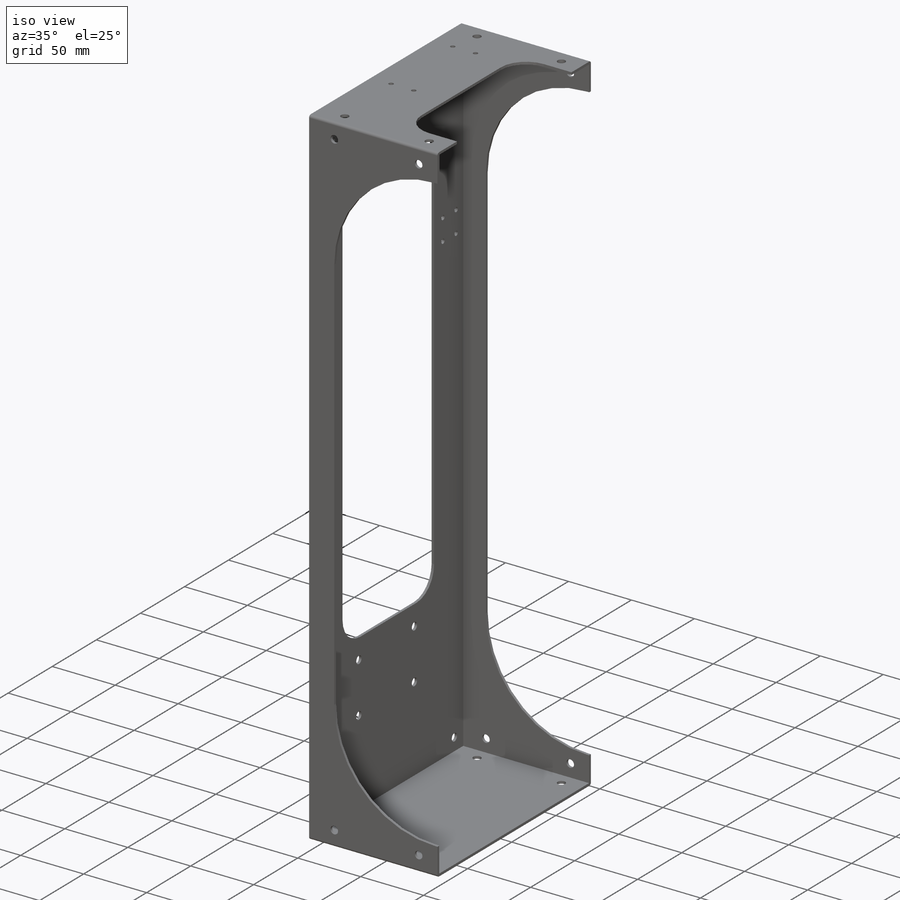
[diagram: iso view]
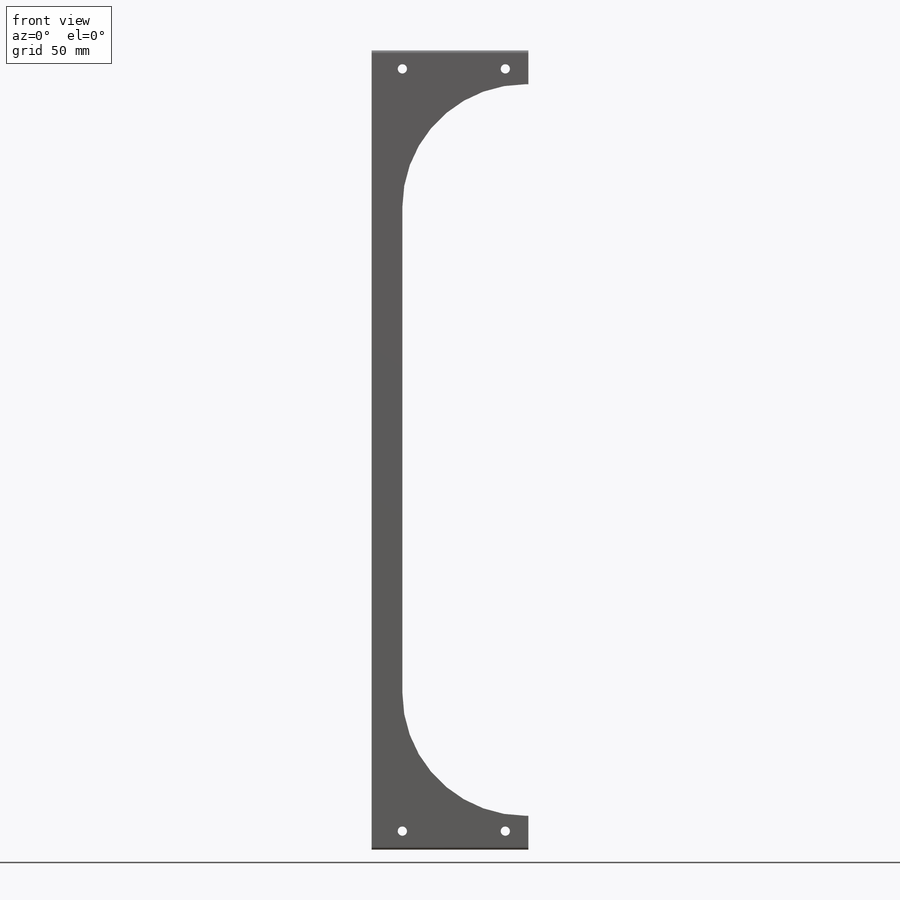
[diagram: front view]
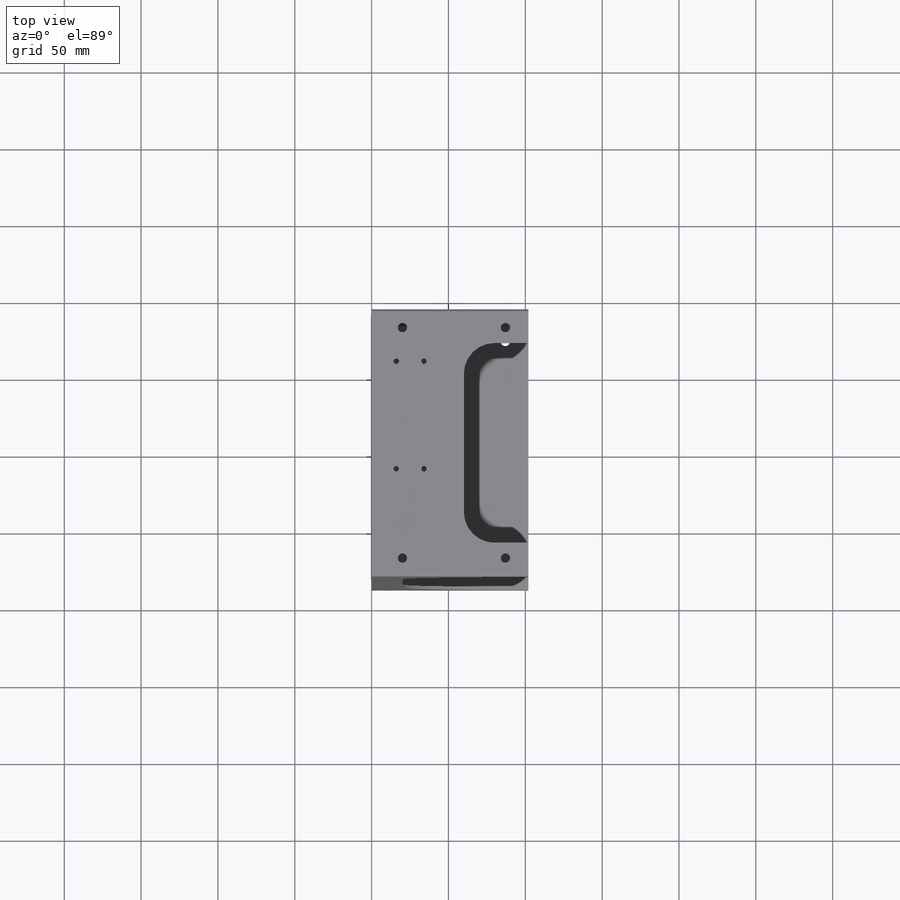
[diagram: top view]
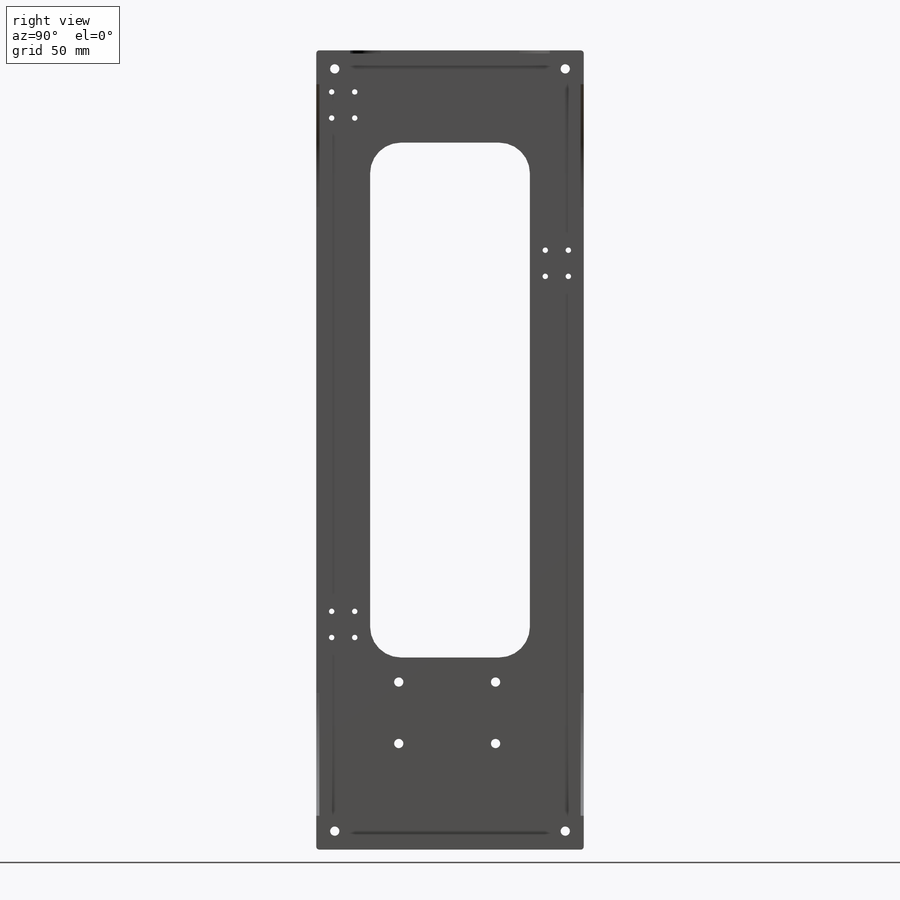
[diagram: right view]
SOLIDWORKS PART (.sldprt)
format: sldprt  version: not decoded by parser v0  size: 473,088 bytes
history: native  units: mm
features: sketch x10, cut_extrude x8, extrude x2, material x1, fillet x1 (+11 scaffold rows collapsed)
feature tree (33):
  scaffold x11  (default folders/planes/origin — collapsed)
  material  "Material <not specified>"
  sketch  "Sketch1"  dims[D1=520.0mm D2=174.0mm]
  extrude  "Boss-Extrude1"  Depth=2mm
  sketch  "Sketch2"  dims[D1=2.0mm D2=0.0mm]
  extrude  "Boss-Extrude2"  Depth=100mm
  sketch  "Sketch3"  dims[c1.D9=4.0mm c1.D10=13.0mm c1.D13=600.0mm c1.D3=80.0mm c1.D1=34.5mm c1.D2=10.4mm c2.D3=80.6mm c2.D4=53.1mm c2.D5=16.65mm c2.D6=2.85mm c2.D7=17.75mm c2.D8=15.1mm c2.D11=22.0mm c2.D12=22.0mm c2.D2=20.0mm]
  cut_extrude  "Cut-Extrude1"  Depth=10mm
  sketch  "Sketch4"  dims[D2=6.0mm D1=12.0mm D3=15.0mm D4=12.0mm D5=20.0mm]
  cut_extrude  "Cut-Extrude2"  [1 undecoded]
  sketch  "Sketch5"  dims[D3=6.0mm D1=12.0mm D2=12.0mm]
  cut_extrude  "Cut-Extrude3"  [1 undecoded]
  sketch  "Sketch7"  dims[c1.D4=150.0mm c1.D5=20.0mm c2.D4=150.0mm c2.D5=80.0mm c2.D1=22.0mm c2.D2=22.0mm c2.D3=20.0mm c3.D4=150.0mm]
  cut_extrude  "Cut-Extrude4"  Depth=10mm
  sketch  "Sketch8"  dims[D1=20.0mm D5=3.5mm D2=22.0mm D3=22.0mm D4=60.0mm]
  cut_extrude  "Cut-Extrude5"  Depth=10mm
  fillet  "Fillet1"  Radius=1.8mm
  sketch  "Sketch9"  dims[D5=6.0mm D1=12.0mm D2=12.0mm D3=12.0mm D4=12.0mm]
  cut_extrude  "Cut-Extrude6"  Depth=10mm
  sketch  "Sketch10"  dims[D1=20.0mm D6=6.0mm D7=3.5mm D2=35.0mm D3=35.0mm D4=60.0mm D5=125.0mm]
  cut_extrude  "Cut-Extrude7"  [1 undecoded]
  sketch  "Sketch11"  dims[D1=20.0mm]
  cut_extrude  "Cut-Extrude8"  Depth=0.01mm
decode coverage: 18 of 21 modeling features carry decoded parameters
note: 3 parameter values undecoded
summary: no parameter record found for 3 features
note: suppression state not decoded; provenance and decode notes live in map.json
